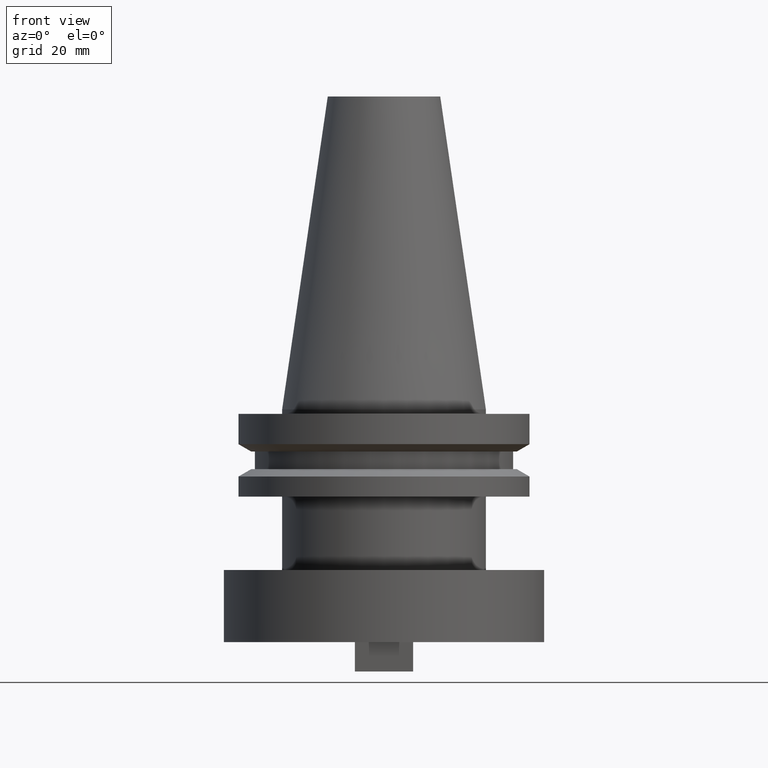
[diagram: clean part render]
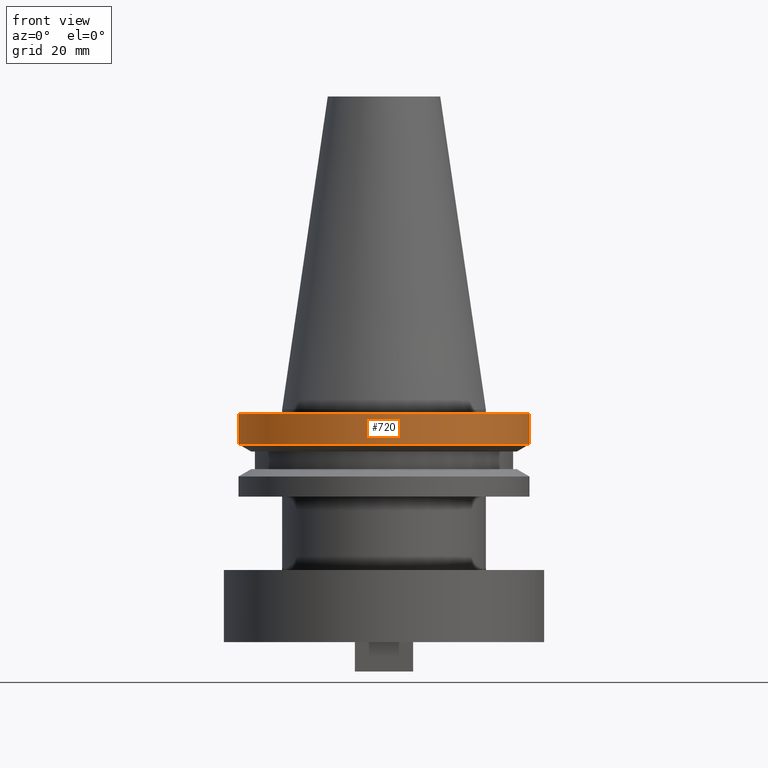
[diagram: same view with one face highlighted and labeled with its STEP entity id]
A machine part, front view. The second image highlights one B-rep face of the part: STEP entity #720.
In plain terms, the highlighted cylindrical surface (partial cylindrical patch) has radius 31.75 mm, axis along (-0, -0, 1).
Its self-contained STEP definition (entity closure, byte-faithful):
#36 = ORIENTED_EDGE ( 'NONE', *, *, #905, .T. ) ;
#43 = EDGE_LOOP ( 'NONE', ( #588, #172, #36, #712 ) ) ;
#131 = DIRECTION ( 'NONE',  ( 1.000000000000000000, 0.000000000000000000, 0.000000000000000000 ) ) ;
#136 = DIRECTION ( 'NONE',  ( -0.000000000000000000, -0.000000000000000000, 1.000000000000000000 ) ) ;
#150 = DIRECTION ( 'NONE',  ( 1.000000000000000000, 0.000000000000000000, 0.000000000000000000 ) ) ;
#172 = ORIENTED_EDGE ( 'NONE', *, *, #247, .T. ) ;
#193 = CYLINDRICAL_SURFACE ( 'NONE', #499, 31.75000000000000000 ) ;
#245 = CARTESIAN_POINT ( 'NONE',  ( 31.75000000000000000, 0.000000000000000000, -1.000000000000000888 ) ) ;
#247 = EDGE_CURVE ( 'NONE', #1034, #334, #1013, .T. ) ;
#323 = EDGE_CURVE ( 'NONE', #1054, #517, #633, .T. ) ;
#334 = VERTEX_POINT ( 'NONE', #420 ) ;
#336 = VECTOR ( 'NONE', #136, 1000.000000000000000 ) ;
#339 = AXIS2_PLACEMENT_3D ( 'NONE', #723, #797, #892 ) ;
#374 = AXIS2_PLACEMENT_3D ( 'NONE', #828, #1087, #150 ) ;
#420 = CARTESIAN_POINT ( 'NONE',  ( 31.75000000000000000, 0.000000000000000000, -7.605276606597335842 ) ) ;
#499 = AXIS2_PLACEMENT_3D ( 'NONE', #861, #533, #131 ) ;
#510 = DIRECTION ( 'NONE',  ( -0.000000000000000000, -0.000000000000000000, 1.000000000000000000 ) ) ;
#514 = CARTESIAN_POINT ( 'NONE',  ( -31.75000000000000000, 3.888253587292846476E-15, 68.25000000000000000 ) ) ;
#517 = VERTEX_POINT ( 'NONE', #245 ) ;
#524 = EDGE_CURVE ( 'NONE', #1034, #1054, #850, .T. ) ;
#533 = DIRECTION ( 'NONE',  ( -0.000000000000000000, -0.000000000000000000, 1.000000000000000000 ) ) ;
#588 = ORIENTED_EDGE ( 'NONE', *, *, #524, .F. ) ;
#633 = CIRCLE ( 'NONE', #374, 31.75000000000000000 ) ;
#681 = CARTESIAN_POINT ( 'NONE',  ( -31.75000000000000000, 3.888253587292846476E-15, -7.605276606597335842 ) ) ;
#712 = ORIENTED_EDGE ( 'NONE', *, *, #323, .F. ) ;
#720 = ADVANCED_FACE ( 'NONE', ( #790 ), #193, .T. ) ;
#723 = CARTESIAN_POINT ( 'NONE',  ( 0.000000000000000000, 0.000000000000000000, -7.605276606597335842 ) ) ;
#754 = LINE ( 'NONE', #1063, #336 ) ;
#790 = FACE_OUTER_BOUND ( 'NONE', #43, .T. ) ;
#797 = DIRECTION ( 'NONE',  ( -0.000000000000000000, -0.000000000000000000, 1.000000000000000000 ) ) ;
#828 = CARTESIAN_POINT ( 'NONE',  ( 0.000000000000000000, 0.000000000000000000, -1.000000000000000888 ) ) ;
#850 = LINE ( 'NONE', #514, #987 ) ;
#861 = CARTESIAN_POINT ( 'NONE',  ( 0.000000000000000000, 0.000000000000000000, 68.25000000000000000 ) ) ;
#892 = DIRECTION ( 'NONE',  ( 1.000000000000000000, 0.000000000000000000, 0.000000000000000000 ) ) ;
#905 = EDGE_CURVE ( 'NONE', #334, #517, #754, .T. ) ;
#987 = VECTOR ( 'NONE', #510, 1000.000000000000000 ) ;
#1013 = CIRCLE ( 'NONE', #339, 31.75000000000000000 ) ;
#1017 = CARTESIAN_POINT ( 'NONE',  ( -31.75000000000000000, 3.888253587292846476E-15, -1.000000000000000888 ) ) ;
#1034 = VERTEX_POINT ( 'NONE', #681 ) ;
#1054 = VERTEX_POINT ( 'NONE', #1017 ) ;
#1063 = CARTESIAN_POINT ( 'NONE',  ( 31.75000000000000000, 0.000000000000000000, 68.25000000000000000 ) ) ;
#1087 = DIRECTION ( 'NONE',  ( -0.000000000000000000, -0.000000000000000000, 1.000000000000000000 ) ) ;